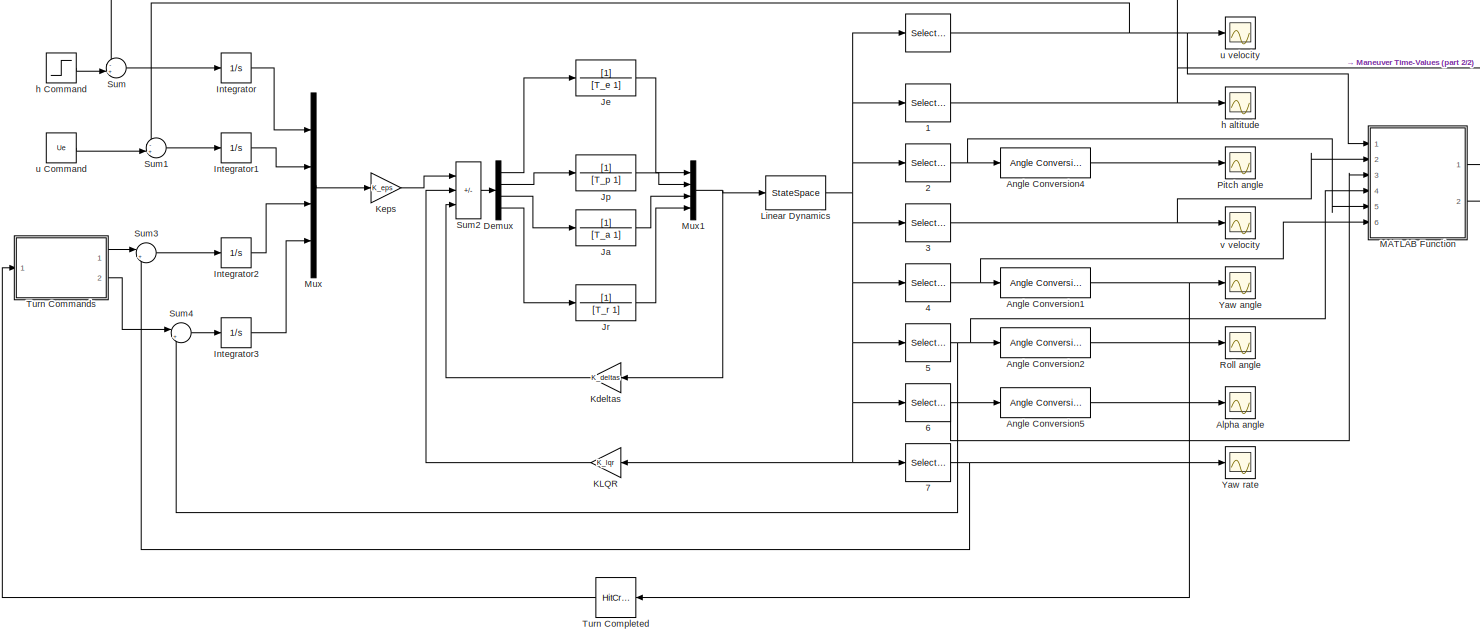
[diagram: root canvas - part 1/2, most of the canvas]
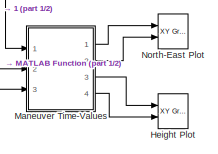
[diagram: root canvas - part 2/2, middle right region]
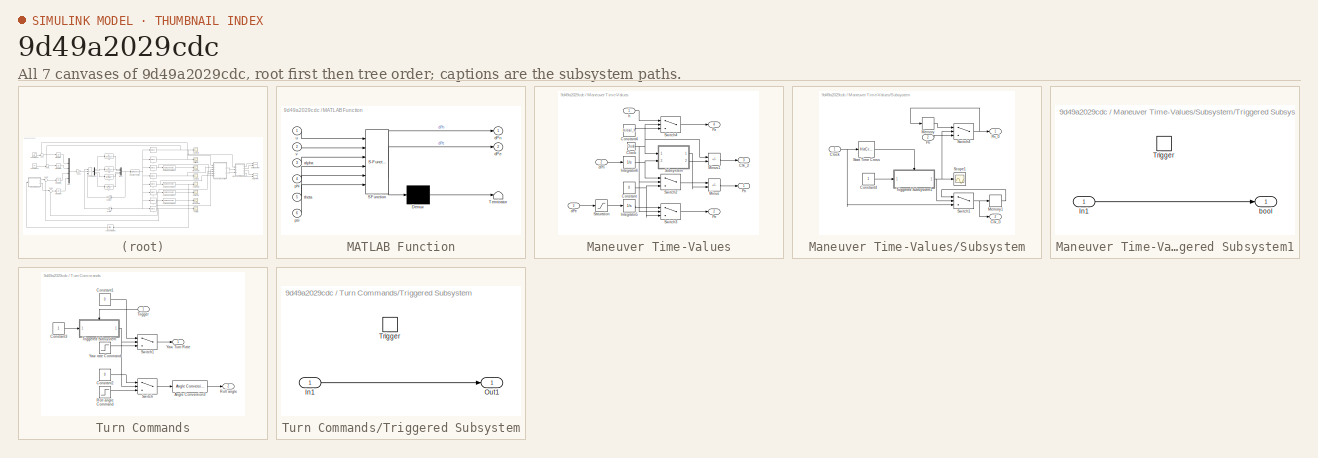
[diagram: thumbnail index - all 7 canvases of the model, root first then tree order]
MODEL slx_9d49a2029cdc
KIND model
CONFIG AbsTol = auto
CONFIG EnableMultiTasking = off
CONFIG FixedStep = auto
CONFIG MaxStep = auto
CONFIG MinStep = auto
CONFIG RelTol = 1e-3
CONFIG SampleTimeConstraint = Unconstrained
CONFIG SolverName = VariableStepAuto
CONFIG StartTime = 0.0
CONFIG StopTime = 2500
BLOCK [Selector]  
  IndexOptions = Index vector (dialog)
  Indices = 1
  InputPortWidth = 10
  OutputSizes = 1
  Ports = [1, 1]
BLOCK [Selector]  1
  IndexOptions = Index vector (dialog)
  Indices = 5
  InputPortWidth = 10
  OutputSizes = 1
  Ports = [1, 1]
BLOCK [Selector]  2
  IndexOptions = Index vector (dialog)
  Indices = 4
  InputPortWidth = 10
  OutputSizes = 1
  Ports = [1, 1]
BLOCK [Selector]  3
  IndexOptions = Index vector (dialog)
  Indices = 6
  InputPortWidth = 10
  OutputSizes = 1
  Ports = [1, 1]
BLOCK [Selector]  4
  IndexOptions = Index vector (dialog)
  Indices = 10
  InputPortWidth = 10
  OutputSizes = 1
  Ports = [1, 1]
BLOCK [Selector]  5
  IndexOptions = Index vector (dialog)
  Indices = 9
  InputPortWidth = 10
  OutputSizes = 1
  Ports = [1, 1]
BLOCK [Selector]  6
  IndexOptions = Index vector (dialog)
  Indices = 2
  InputPortWidth = 10
  OutputSizes = 1
  Ports = [1, 1]
BLOCK [Selector]  7
  IndexOptions = Index vector (dialog)
  Indices = 8
  InputPortWidth = 10
  OutputSizes = 1
  Ports = [1, 1]
BLOCK [Scope] Alpha angle
  Floating = off
  NumInputPorts = 1
  Ports = [1]
  ScopeSpecificationString = Simulink.scopes.TimeScopeBlockCfg('CurrentConfiguration', extmgr.ConfigurationSet(extmgr.Configuration('Core','General UI',true),extmgr.Configuration('Core','Source UI',true),extmgr.Configuration('Sources','WiredSimulink',true,'DataLoggingVariableName','ScopeData2'),extmgr.Configuration('Visuals','Time Domain',true,'SerializedDisplays',{struct('MinYLimReal','-14.49162','MaxYLimReal','3.99468','YLa...<+1380ch>
BLOCK [Reference] Angle Conversion1  REF=aerolibconvert2/Angle Conversion
  Ports = [1, 1]
  SourceBlock = aerolibconvert2/Angle Conversion
  SourceProductBaseCode = AE
  SourceType = Angle Conversion
BLOCK [Reference] Angle Conversion2  REF=aerolibconvert2/Angle Conversion
  Ports = [1, 1]
  SourceBlock = aerolibconvert2/Angle Conversion
  SourceProductBaseCode = AE
  SourceType = Angle Conversion
BLOCK [Reference] Angle Conversion4  REF=aerolibconvert2/Angle Conversion
  Ports = [1, 1]
  SourceBlock = aerolibconvert2/Angle Conversion
  SourceProductBaseCode = AE
  SourceType = Angle Conversion
BLOCK [Reference] Angle Conversion5  REF=aerolibconvert2/Angle Conversion
  Ports = [1, 1]
  SourceBlock = aerolibconvert2/Angle Conversion
  SourceProductBaseCode = AE
  SourceType = Angle Conversion
BLOCK [Demux] Demux
  Ports = [1, 4]
BLOCK [Reference] Height Plot  REF=simulink/Sinks/XY Graph
  Ports = [2]
  SourceBlock = simulink/Sinks/XY Graph
  SourceProductBaseCode = SL
  SourceType = XY scope.
BLOCK [Integrator] Integrator
  Ports = [1, 1]
BLOCK [Integrator] Integrator1
  Ports = [1, 1]
BLOCK [Integrator] Integrator2
  Ports = [1, 1]
BLOCK [Integrator] Integrator3
  Ports = [1, 1]
BLOCK [TransferFcn] Ja
  Denominator = [T_a 1]
BLOCK [TransferFcn] Je
  Denominator = [T_e 1]
BLOCK [TransferFcn] Jp
  Denominator = [T_p 1]
BLOCK [TransferFcn] Jr
  Denominator = [T_r 1]
BLOCK [Gain] KLQR
  Gain = K_lqr
  Multiplication = Matrix(K*u)
BLOCK [Gain] Kdeltas
  Gain = K_deltas
  Multiplication = Matrix(K*u)
BLOCK [Gain] Keps
  Gain = K_eps
  Multiplication = Matrix(K*u)
BLOCK [StateSpace] Linear Dynamics
  A = A_final
  B = B_final
  C = C_final
  D = D_final
  InitialCondition = 0
  Ports = [1, 1]
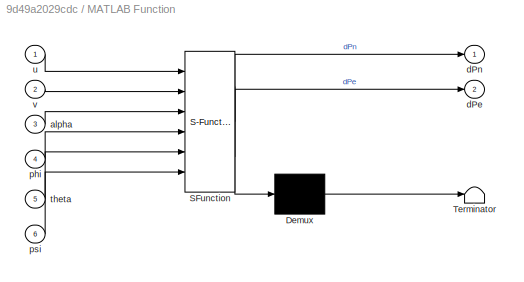
BLOCK [SubSystem] MATLAB Function
  ErrorFcn = Stateflow.Translate.translate
  PermitHierarchicalResolution = ExplicitOnly
  Ports = [6, 2]
  RequestExecContextInheritance = off
  SFBlockType = MATLAB Function
  TreatAsAtomicUnit = on
BLOCK [Demux] MATLAB Function/ Demux 
  Outputs = 1
  Ports = [1, 1]
BLOCK [S-Function] MATLAB Function/ SFunction 
  EnableBusSupport = on
  FunctionName = sf_sfun
  PortCounts = [6 3]
  Ports = [6, 3]
  SFcnIsStateOwnerBlock = off
  SFunctionDeploymentMode = off
  Tag = Stateflow S-Function 2
BLOCK [Terminator] MATLAB Function/ Terminator 
BLOCK [Inport] MATLAB Function/alpha
  Port = 3
BLOCK [Outport] MATLAB Function/dPe
  Port = 2
BLOCK [Outport] MATLAB Function/dPn
BLOCK [Inport] MATLAB Function/phi
  Port = 4
BLOCK [Inport] MATLAB Function/psi
  Port = 6
BLOCK [Inport] MATLAB Function/theta
  Port = 5
BLOCK [Inport] MATLAB Function/u
BLOCK [Inport] MATLAB Function/v
  Port = 2
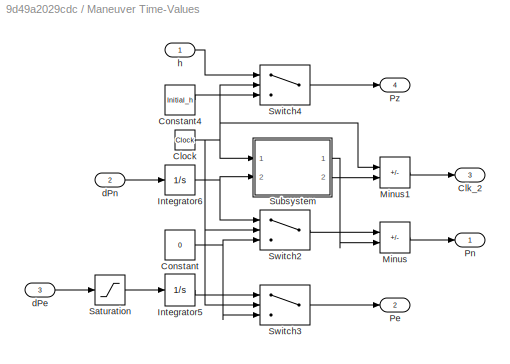
BLOCK [SubSystem] Maneuver Time-Values
  Ports = [3, 4]
  RequestExecContextInheritance = off
BLOCK [Outport] Maneuver Time-Values/Clk_2
  Port = 3
BLOCK [Clock] Maneuver Time-Values/Clock
BLOCK [Constant] Maneuver Time-Values/Constant
  Value = 0
BLOCK [Constant] Maneuver Time-Values/Constant4
  Value = Initial_h
BLOCK [Integrator] Maneuver Time-Values/Integrator5
  Ports = [1, 1]
  ZeroCross = off
BLOCK [Integrator] Maneuver Time-Values/Integrator6
  Ports = [1, 1]
BLOCK [Sum] Maneuver Time-Values/Minus
  IconShape = rectangular
  Inputs = +-
  Ports = [2, 1]
BLOCK [Sum] Maneuver Time-Values/Minus1
  IconShape = rectangular
  Inputs = +-
  Ports = [2, 1]
BLOCK [Outport] Maneuver Time-Values/Pe
  Port = 2
BLOCK [Outport] Maneuver Time-Values/Pn
BLOCK [Outport] Maneuver Time-Values/Pz
  Port = 4
BLOCK [Saturate] Maneuver Time-Values/Saturation
  LowerLimit = 0
  UpperLimit = inf
BLOCK [SubSystem] Maneuver Time-Values/Subsystem
  Ports = [2, 2]
  RequestExecContextInheritance = off
BLOCK [Outport] Maneuver Time-Values/Subsystem/Clk_0
  Port = 2
BLOCK [Inport] Maneuver Time-Values/Subsystem/Clock
BLOCK [Constant] Maneuver Time-Values/Subsystem/Constant4
BLOCK [Memory] Maneuver Time-Values/Subsystem/Memory
  InheritSampleTime = on
BLOCK [Memory] Maneuver Time-Values/Subsystem/Memory1
  InheritSampleTime = on
BLOCK [Inport] Maneuver Time-Values/Subsystem/Pn
  Port = 2
BLOCK [Outport] Maneuver Time-Values/Subsystem/Pn_0
BLOCK [Scope] Maneuver Time-Values/Subsystem/Scope1
  Floating = off
  NumInputPorts = 1
  Ports = [1]
  ScopeSpecificationString = Simulink.scopes.TimeScopeBlockCfg('CurrentConfiguration', extmgr.ConfigurationSet(extmgr.Configuration('Core','General UI',true),extmgr.Configuration('Core','Source UI',true),extmgr.Configuration('Sources','WiredSimulink',true,'DataLoggingVariableName','ScopeData7'),extmgr.Configuration('Visuals','Time Domain',true,'SerializedDisplays',{struct('MinYLimReal','-0.125','MaxYLimReal','1.125','YLabelRe...<+1400ch>
BLOCK [HitCross] Maneuver Time-Values/Subsystem/Start Time Cross
  HitCrossingOffset = Start_time
  Ports = [1, 1]
BLOCK [Switch] Maneuver Time-Values/Subsystem/Switch1
  Criteria = u2 ~= 0
  InputSameDT = off
  SaturateOnIntegerOverflow = off
BLOCK [Switch] Maneuver Time-Values/Subsystem/Switch4
  Criteria = u2 ~= 0
  InputSameDT = off
  SaturateOnIntegerOverflow = off
BLOCK [SubSystem] Maneuver Time-Values/Subsystem/Triggered Subsystem1
  Ports = [1, 1, 0, 1]
  RequestExecContextInheritance = off
  TreatAsAtomicUnit = on
BLOCK [Inport] Maneuver Time-Values/Subsystem/Triggered Subsystem1/In1
BLOCK [TriggerPort] Maneuver Time-Values/Subsystem/Triggered Subsystem1/Trigger
  Ports = []
  StatesWhenEnabling = held
  VariantControl = (inherit)
BLOCK [Outport] Maneuver Time-Values/Subsystem/Triggered Subsystem1/bool
BLOCK [Switch] Maneuver Time-Values/Switch2
  Criteria = u2 > Threshold
  InputSameDT = off
  SaturateOnIntegerOverflow = off
  Threshold = Start_time
BLOCK [Switch] Maneuver Time-Values/Switch3
  Criteria = u2 > Threshold
  InputSameDT = off
  SaturateOnIntegerOverflow = off
  Threshold = Start_time
BLOCK [Switch] Maneuver Time-Values/Switch4
  Criteria = u2 > Threshold
  InputSameDT = off
  SaturateOnIntegerOverflow = off
  Threshold = Start_time
BLOCK [Inport] Maneuver Time-Values/dPe
  Port = 3
BLOCK [Inport] Maneuver Time-Values/dPn
  Port = 2
BLOCK [Inport] Maneuver Time-Values/h
BLOCK [Mux] Mux
  DisplayOption = bar
  Ports = [4, 1]
BLOCK [Mux] Mux1
  DisplayOption = bar
  Ports = [4, 1]
BLOCK [Reference] North-East Plot  REF=simulink/Sinks/XY Graph
  Ports = [2]
  SourceBlock = simulink/Sinks/XY Graph
  SourceProductBaseCode = SL
  SourceType = XY scope.
BLOCK [Scope] Pitch angle
  Floating = off
  NumInputPorts = 1
  Ports = [1]
  ScopeSpecificationString = Simulink.scopes.TimeScopeBlockCfg('CurrentConfiguration', extmgr.ConfigurationSet(extmgr.Configuration('Core','General UI',true),extmgr.Configuration('Core','Source UI',true),extmgr.Configuration('Sources','WiredSimulink',true,'DataLoggingVariableName','ScopeData1'),extmgr.Configuration('Visuals','Time Domain',true,'SerializedDisplays',{struct('MinYLimReal','-0.50687','MaxYLimReal','4.00904','YLab...<+1414ch>
BLOCK [Scope] Roll angle
  Floating = off
  NumInputPorts = 1
  Ports = [1]
  ScopeSpecificationString = Simulink.scopes.TimeScopeBlockCfg('CurrentConfiguration', extmgr.ConfigurationSet(extmgr.Configuration('Core','General UI',true),extmgr.Configuration('Core','Source UI',true),extmgr.Configuration('Sources','WiredSimulink',true,'DataLoggingVariableName','ScopeData2'),extmgr.Configuration('Visuals','Time Domain',true,'SerializedDisplays',{struct('MinYLimReal','-2.52059','MaxYLimReal','13.96759','YLa...<+1728ch>
BLOCK [Sum] Sum
  Inputs = -+|
  Ports = [2, 1]
BLOCK [Sum] Sum1
  Inputs = -+|
  Ports = [2, 1]
BLOCK [Sum] Sum2
  IconShape = rectangular
  Inputs = |---
  Ports = [3, 1]
BLOCK [Sum] Sum3
  Inputs = |+-
  Ports = [2, 1]
BLOCK [Sum] Sum4
  Inputs = |+-
  Ports = [2, 1]
BLOCK [SubSystem] Turn Commands
  Ports = [1, 2]
  RequestExecContextInheritance = off
BLOCK [Reference] Turn Commands/Angle Conversion3  REF=aerolibconvert2/Angle Conversion
  Ports = [1, 1]
  SourceBlock = aerolibconvert2/Angle Conversion
  SourceProductBaseCode = AE
  SourceType = Angle Conversion
BLOCK [Constant] Turn Commands/Constant1
  Value = 0
BLOCK [Constant] Turn Commands/Constant2
  Value = 0
BLOCK [Constant] Turn Commands/Constant3
BLOCK [Outport] Turn Commands/Roll angle
  Port = 2
BLOCK [Step] Turn Commands/Roll angle Command
  After = Des_roll
  SampleTime = 0
  Time = Start_turn
BLOCK [Switch] Turn Commands/Switch
  Criteria = u2 ~= 0
  InputSameDT = off
  Threshold = 180
BLOCK [Switch] Turn Commands/Switch1
  Criteria = u2 ~= 0
  InputSameDT = off
  Threshold = 180
BLOCK [Inport] Turn Commands/Trigger
BLOCK [SubSystem] Turn Commands/Triggered Subsystem
  Ports = [1, 1, 0, 1]
  RequestExecContextInheritance = off
  TreatAsAtomicUnit = on
BLOCK [Inport] Turn Commands/Triggered Subsystem/In1
BLOCK [Outport] Turn Commands/Triggered Subsystem/Out1
BLOCK [TriggerPort] Turn Commands/Triggered Subsystem/Trigger
  Ports = []
  StatesWhenEnabling = held
  VariantControl = (inherit)
BLOCK [Outport] Turn Commands/Yaw Turn Rate
BLOCK [Step] Turn Commands/Yaw rate Command
  After = Des_rate
  SampleTime = 0
  Time = Start_turn
BLOCK [HitCross] Turn Completed
  HitCrossingOffset = Yaw_des
  Ports = [1, 1]
BLOCK [Scope] Yaw angle
  Floating = off
  NumInputPorts = 1
  Ports = [1]
  ScopeSpecificationString = Simulink.scopes.TimeScopeBlockCfg('CurrentConfiguration', extmgr.ConfigurationSet(extmgr.Configuration('Core','General UI',true),extmgr.Configuration('Core','Source UI',true),extmgr.Configuration('Sources','WiredSimulink',true,'DataLoggingVariableName','ScopeData1'),extmgr.Configuration('Visuals','Time Domain',true,'SerializedDisplays',{struct('MinYLimReal','-22.60025','MaxYLimReal','203.40229','Y...<+1731ch>
BLOCK [Scope] Yaw rate
  Floating = off
  NumInputPorts = 1
  Ports = [1]
  ScopeSpecificationString = Simulink.scopes.TimeScopeBlockCfg('CurrentConfiguration', extmgr.ConfigurationSet(extmgr.Configuration('Core','General UI',true),extmgr.Configuration('Core','Source UI',true),extmgr.Configuration('Sources','WiredSimulink',true,'DataLoggingVariableName','ScopeData1'),extmgr.Configuration('Visuals','Time Domain',true,'SerializedDisplays',{struct('MinYLimReal','-0.01569','MaxYLimReal','0.10472','YLab...<+1397ch>
BLOCK [Step] h Command
  After = Second_h
  Before = Initial_h
  SampleTime = 0
  Time = Step_timeh
BLOCK [Scope] h altitude
  Floating = off
  NumInputPorts = 1
  Ports = [1]
  ScopeSpecificationString = Simulink.scopes.TimeScopeBlockCfg('CurrentConfiguration', extmgr.ConfigurationSet(extmgr.Configuration('Core','General UI',true),extmgr.Configuration('Core','Source UI',true),extmgr.Configuration('Sources','WiredSimulink',true,'DataLoggingVariableName','ScopeData4'),extmgr.Configuration('Visuals','Time Domain',true,'SerializedDisplays',{struct('MinYLimReal','-250.00202','MaxYLimReal','2250.00022',...<+1416ch>
BLOCK [Constant] u Command
  Value = Ue
BLOCK [Scope] u velocity
  Floating = off
  NumInputPorts = 1
  Ports = [1]
  ScopeSpecificationString = Simulink.scopes.TimeScopeBlockCfg('CurrentConfiguration', extmgr.ConfigurationSet(extmgr.Configuration('Core','General UI',true),extmgr.Configuration('Core','Source UI',true),extmgr.Configuration('Sources','WiredSimulink',true,'DataLoggingVariableName','ScopeData5'),extmgr.Configuration('Visuals','Time Domain',true,'SerializedDisplays',{struct('MinYLimReal','-3.00073','MaxYLimReal','27.00657','YLa...<+1701ch>
BLOCK [Scope] v velocity
  Floating = off
  NumInputPorts = 1
  Ports = [1]
  ScopeSpecificationString = Simulink.scopes.TimeScopeBlockCfg('CurrentConfiguration', extmgr.ConfigurationSet(extmgr.Configuration('Core','General UI',true),extmgr.Configuration('Core','Source UI',true),extmgr.Configuration('Sources','WiredSimulink',true),extmgr.Configuration('Visuals','Time Domain',true,'SerializedDisplays',{struct('MinYLimReal','-0.6909','MaxYLimReal','0.66248','YLabelReal','','MinYLimMag','0.00000','MaxYL...<+1318ch>
NET  1:1 -> Maneuver Time-Values:1, Sum:1, h altitude:1
NET  2:1 -> Angle Conversion4:1, MATLAB Function:5
NET  3:1 -> MATLAB Function:2, v velocity:1
NET  4:1 -> Angle Conversion1:1, MATLAB Function:6
NET  5:1 -> Angle Conversion2:1, MATLAB Function:4, Sum4:2
NET  6:1 -> Angle Conversion5:1, MATLAB Function:3
NET  7:1 -> Sum3:2, Yaw rate:1
NET  :1 -> MATLAB Function:1, Sum1:1, u velocity:1
NET Angle Conversion1:1 -> Turn Completed:1, Yaw angle:1
LINE Angle Conversion2:1 -> Roll angle:1
LINE Angle Conversion4:1 -> Pitch angle:1
LINE Angle Conversion5:1 -> Alpha angle:1
LINE Demux:1 -> Je:1
LINE Demux:2 -> Jp:1
LINE Demux:3 -> Ja:1
LINE Demux:4 -> Jr:1
LINE Integrator1:1 -> Mux:2
LINE Integrator2:1 -> Mux:3
LINE Integrator3:1 -> Mux:4
LINE Integrator:1 -> Mux:1
LINE Ja:1 -> Mux1:3
LINE Je:1 -> Mux1:1
LINE Jp:1 -> Mux1:2
LINE Jr:1 -> Mux1:4
LINE KLQR:1 -> Sum2:2
LINE Kdeltas:1 -> Sum2:3
LINE Keps:1 -> Sum2:1
NET Linear Dynamics:1 ->  1:1,  2:1,  3:1,  4:1,  5:1,  6:1,  7:1,  :1, KLQR:1
LINE MATLAB Function:1 -> Maneuver Time-Values:2
LINE MATLAB Function:2 -> Maneuver Time-Values:3
NET Maneuver Time-Values/Clock:1 -> Maneuver Time-Values/Minus1:1, Maneuver Time-Values/Subsystem:1, Maneuver Time-Values/Switch2:2, Maneuver Time-Values/Switch3:2, Maneuver Time-Values/Switch4:2
LINE Maneuver Time-Values/Constant4:1 -> Maneuver Time-Values/Switch4:3
NET Maneuver Time-Values/Constant:1 -> Maneuver Time-Values/Switch2:3, Maneuver Time-Values/Switch3:3
LINE Maneuver Time-Values/Integrator5:1 -> Maneuver Time-Values/Switch3:1
NET Maneuver Time-Values/Integrator6:1 -> Maneuver Time-Values/Subsystem:2, Maneuver Time-Values/Switch2:1
LINE Maneuver Time-Values/Minus1:1 -> Maneuver Time-Values/Clk_2:1
LINE Maneuver Time-Values/Minus:1 -> Maneuver Time-Values/Pn:1
LINE Maneuver Time-Values/Saturation:1 -> Maneuver Time-Values/Integrator5:1
NET Maneuver Time-Values/Subsystem/Clock:1 -> Maneuver Time-Values/Subsystem/Start Time Cross:1, Maneuver Time-Values/Subsystem/Switch1:3
LINE Maneuver Time-Values/Subsystem/Constant4:1 -> Maneuver Time-Values/Subsystem/Triggered Subsystem1:1
LINE Maneuver Time-Values/Subsystem/Memory1:1 -> Maneuver Time-Values/Subsystem/Switch1:1
LINE Maneuver Time-Values/Subsystem/Memory:1 -> Maneuver Time-Values/Subsystem/Switch4:1
LINE Maneuver Time-Values/Subsystem/Pn:1 -> Maneuver Time-Values/Subsystem/Switch4:3
LINE Maneuver Time-Values/Subsystem/Start Time Cross:1 -> Maneuver Time-Values/Subsystem/Triggered Subsystem1:trigger
NET Maneuver Time-Values/Subsystem/Switch1:1 -> Maneuver Time-Values/Subsystem/Clk_0:1, Maneuver Time-Values/Subsystem/Memory1:1
NET Maneuver Time-Values/Subsystem/Switch4:1 -> Maneuver Time-Values/Subsystem/Memory:1, Maneuver Time-Values/Subsystem/Pn_0:1
LINE Maneuver Time-Values/Subsystem/Triggered Subsystem1/In1:1 -> Maneuver Time-Values/Subsystem/Triggered Subsystem1/bool:1
NET Maneuver Time-Values/Subsystem/Triggered Subsystem1:1 -> Maneuver Time-Values/Subsystem/Scope1:1, Maneuver Time-Values/Subsystem/Switch1:2, Maneuver Time-Values/Subsystem/Switch4:2
LINE Maneuver Time-Values/Subsystem:1 -> Maneuver Time-Values/Minus:2
LINE Maneuver Time-Values/Subsystem:2 -> Maneuver Time-Values/Minus1:2
LINE Maneuver Time-Values/Switch2:1 -> Maneuver Time-Values/Minus:1
LINE Maneuver Time-Values/Switch3:1 -> Maneuver Time-Values/Pe:1
LINE Maneuver Time-Values/Switch4:1 -> Maneuver Time-Values/Pz:1
LINE Maneuver Time-Values/dPe:1 -> Maneuver Time-Values/Saturation:1
LINE Maneuver Time-Values/dPn:1 -> Maneuver Time-Values/Integrator6:1
LINE Maneuver Time-Values/h:1 -> Maneuver Time-Values/Switch4:1
LINE Maneuver Time-Values:1 -> North-East Plot:1
LINE Maneuver Time-Values:2 -> North-East Plot:2
LINE Maneuver Time-Values:3 -> Height Plot:1
LINE Maneuver Time-Values:4 -> Height Plot:2
NET Mux1:1 -> Kdeltas:1, Linear Dynamics:1
LINE Mux:1 -> Keps:1
LINE Sum1:1 -> Integrator1:1
LINE Sum2:1 -> Demux:1
LINE Sum3:1 -> Integrator2:1
LINE Sum4:1 -> Integrator3:1
LINE Sum:1 -> Integrator:1
LINE Turn Commands/Angle Conversion3:1 -> Turn Commands/Roll angle:1
LINE Turn Commands/Constant1:1 -> Turn Commands/Switch1:1
LINE Turn Commands/Constant2:1 -> Turn Commands/Switch:1
LINE Turn Commands/Constant3:1 -> Turn Commands/Triggered Subsystem:1
LINE Turn Commands/Roll angle Command:1 -> Turn Commands/Switch:3
LINE Turn Commands/Switch1:1 -> Turn Commands/Yaw Turn Rate:1
LINE Turn Commands/Switch:1 -> Turn Commands/Angle Conversion3:1
LINE Turn Commands/Trigger:1 -> Turn Commands/Triggered Subsystem:trigger
LINE Turn Commands/Triggered Subsystem/In1:1 -> Turn Commands/Triggered Subsystem/Out1:1
NET Turn Commands/Triggered Subsystem:1 -> Turn Commands/Switch1:2, Turn Commands/Switch:2
LINE Turn Commands/Yaw rate Command:1 -> Turn Commands/Switch1:3
LINE Turn Commands:1 -> Sum3:1
LINE Turn Commands:2 -> Sum4:1
LINE Turn Completed:1 -> Turn Commands:1
LINE h Command:1 -> Sum:2
LINE u Command:1 -> Sum1:2
note: NET lines group one-source signal fan-out (src -> all destinations, sorted); 1:1 wires keep LINE
CHART MATLAB Function states=1 transitions=1
  STATE_LABEL 'eML_blk_kernel()'
  STATE_LABEL 'SCRIPT:\nfunction [dPn,dPe] = inertia(u,v,alpha,phi,theta,psi)\n% Funtion to compute North (x) and east (y) position.\nw = alpha*u;\nmatrix = [cos(theta)*cos(psi),sin(phi)*sin(theta)*cos(psi)-cos(phi)*sin(psi),cos(phi)*sin(theta)*cos(psi)+sin(phi)*sin(psi);...\n    cos(theta)*sin(psi), sin(phi)*sin(theta)*sin(psi)+cos(phi)*cos(psi),cos(phi)*sin(theta)*sin(psi)-sin(phi)*cos(psi)];\nstates = matrix*[u;v;w...<+37ch>'
CHART  states=0 transitions=0
